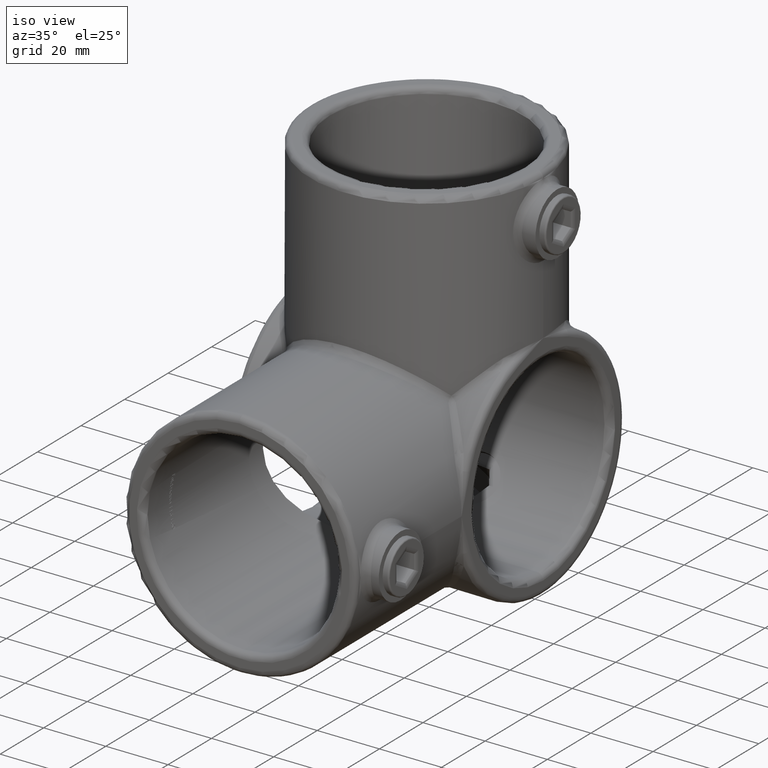
[diagram: clean part render]
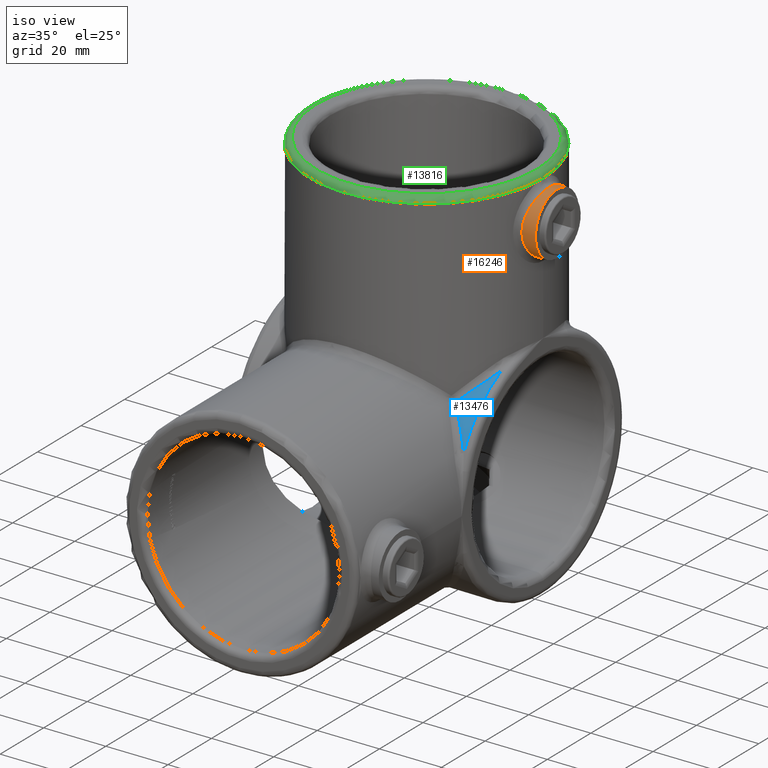
[diagram: same view with three faces highlighted in distinct colors, each labeled with its STEP entity id]
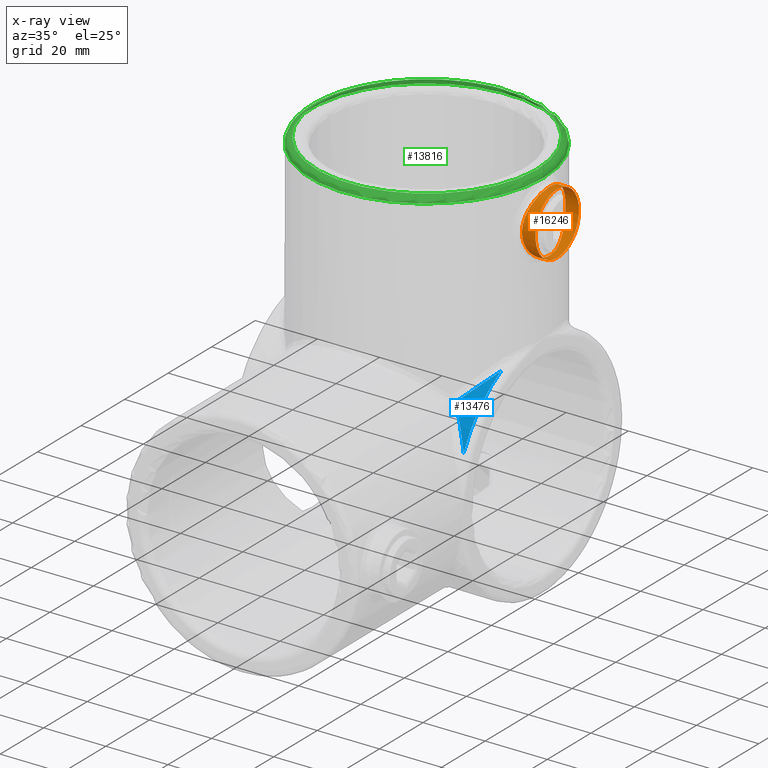
[diagram: x-ray of the same camera — body ghosted, the three highlighted faces saturated]
A machine part, iso view with three faces highlighted in distinct colors.
The next image is the same camera in x-ray (body ghosted, the three faces saturated) — at least one of them is partly hidden behind the body in this view.
Their STEP definitions:

[orange] entity #16246 — the highlighted cylindrical surface (bore or boss wall) has radius 10 mm, axis along (-1, -0, -0).
#801 = CARTESIAN_POINT ( 'NONE',  ( 39.14351397054227988, -4.454152490823579669, 80.97716789974165863 ) ) ;
#854 = CARTESIAN_POINT ( 'NONE',  ( 39.14004574505967327, -4.443320032738345304, 63.03535222760435630 ) ) ;
#1010 = CARTESIAN_POINT ( 'NONE',  ( 39.27182466853748366, 3.546055762269261447, 81.35589838738557944 ) ) ;
#1120 = CARTESIAN_POINT ( 'NONE',  ( 38.16448163088987400, 8.489058784799398794, 66.70463876329603181 ) ) ;
#1172 = CARTESIAN_POINT ( 'NONE',  ( 37.75509050574655845, 9.676339284484345882, 69.39237150887930738 ) ) ;
#1226 = CARTESIAN_POINT ( 'NONE',  ( 38.33589253559555488, 7.935253702846572388, 65.90593961362975506 ) ) ;
#1315 = DIRECTION ( 'NONE',  ( 0.000000000000000000, 0.000000000000000000, -1.000000000000000000 ) ) ;
#1497 = ORIENTED_EDGE ( 'NONE', *, *, #12329, .T. ) ;
#1747 = EDGE_CURVE ( 'NONE', #8805, #8805, #6264, .T. ) ;
#2009 = CARTESIAN_POINT ( 'NONE',  ( 38.00690729431418902, -8.966057153383866662, 76.44028666850655895 ) ) ;
#2062 = CARTESIAN_POINT ( 'NONE',  ( 37.76105798106237899, -9.659733394204916834, 74.60727377983674558 ) ) ;
#2172 = CARTESIAN_POINT ( 'NONE',  ( 39.37803569260889702, -2.604042728230267389, 81.66062694571560598 ) ) ;
#2225 = CARTESIAN_POINT ( 'NONE',  ( 37.95862255232369620, 9.106543099280294484, 67.85522492947607986 ) ) ;
#2287 = CYLINDRICAL_SURFACE ( 'NONE', #5505, 9.999999999999994671 ) ;
#2441 = CARTESIAN_POINT ( 'NONE',  ( 39.31078164665806440, 3.233581040835534104, 81.46850568885284360 ) ) ;
#3245 = CARTESIAN_POINT ( 'NONE',  ( 39.45251438776946173, -1.645765901163158684, 62.13084110006579408 ) ) ;
#3301 = CARTESIAN_POINT ( 'NONE',  ( 37.66447433050423399, -9.917685337157973180, 70.67719463935955559 ) ) ;
#3358 = CARTESIAN_POINT ( 'NONE',  ( 39.50000000000000711, 0.000000000000000000, 81.99999999999998579 ) ) ;
#3397 = CARTESIAN_POINT ( 'NONE',  ( 38.45656090903788282, -7.530449804685437343, 78.61145459978767747 ) ) ;
#3451 = CARTESIAN_POINT ( 'NONE',  ( 37.63311587998091312, -9.999951012648427451, 72.66009588792660168 ) ) ;
#3500 = CARTESIAN_POINT ( 'NONE',  ( 38.00311300466960773, 8.979580721659226938, 76.44862403024973219 ) ) ;
#3604 = CARTESIAN_POINT ( 'NONE',  ( 37.82565423331252674, 9.485726077855295202, 68.76671201514002973 ) ) ;
#3868 = DIRECTION ( 'NONE',  ( 0.000000000000000000, 0.000000000000000000, 1.000000000000000000 ) ) ;
#4520 = CARTESIAN_POINT ( 'NONE',  ( 37.87100185342826819, -9.356436035521873862, 75.54447971154756658 ) ) ;
#4568 = CARTESIAN_POINT ( 'NONE',  ( 37.95906019480450055, -9.105275893888606475, 67.85246652764629971 ) ) ;
#4618 = CARTESIAN_POINT ( 'NONE',  ( 39.31063185199693066, -3.234859378812163122, 81.46807458325324092 ) ) ;
#4678 = CARTESIAN_POINT ( 'NONE',  ( 37.63939039777377360, -9.983598069691412391, 71.33813441555615498 ) ) ;
#4725 = CARTESIAN_POINT ( 'NONE',  ( 38.63777888216979761, -6.844050286365287228, 79.29820027295693308 ) ) ;
#4771 = CARTESIAN_POINT ( 'NONE',  ( 38.11014338080087072, 8.656398617775462156, 66.98272355644687082 ) ) ;
#4825 = CARTESIAN_POINT ( 'NONE',  ( 37.65835073495334484, 9.934691068265456337, 73.31831046132859342 ) ) ;
#4988 = CARTESIAN_POINT ( 'NONE',  ( 37.76160493630191439, 9.658248318902657559, 74.61269617464488135 ) ) ;
#5060 = FACE_OUTER_BOUND ( 'NONE', #14037, .T. ) ;
#5505 = AXIS2_PLACEMENT_3D ( 'NONE', #14969, #7391, #3868 ) ;
#5789 = CARTESIAN_POINT ( 'NONE',  ( 37.73077269952548818, -9.741285367324199029, 74.28390439089366737 ) ) ;
#5846 = B_SPLINE_CURVE_WITH_KNOTS ( 'NONE', 3,
 ( #8309, #9577, #10989, #10826, #2172, #4618, #14729, #801, #5896, #11048, #9632, #16067, #4725, #3397, #13396, #14843, #8515, #2009, #10881, #4520, #12267, #2062, #5789, #13454, #3451, #12322, #4678, #3301, #12160, #14888, #7208, #4568, #5848, #5992, #13615, #13510, #12220, #14789, #7105, #7261, #16013, #10932, #7153, #854, #13558, #16175, #5945, #3245, #12103, #13712, #7524, #16435, #12436, #13826, #8787, #6156, #16380, #8678, #8728, #6270, #16230, #14940, #1226, #11204, #1120, #4771, #15103, #2225, #3604, #1172, #8572, #11311, #12599, #4825, #6108, #4988, #11095, #16328, #3500, #13881, #15162, #13665, #12491, #6051, #7312, #7468, #10018, #9962, #1010, #2441, #12374, #9858, #15001, #8633, #11255 ),
 .UNSPECIFIED., .T., .F.,
 ( 4, 2, 2, 2, 2, 2, 2, 2, 2, 2, 2, 2, 2, 2, 2, 2, 2, 2, 2, 2, 2, 2, 2, 2, 2, 1, 2, 2, 2, 2, 2, 2, 2, 2, 2, 2, 2, 2, 2, 2, 2, 2, 2, 2, 2, 2, 2, 4 ),
 ( 0.000000000000000000, 0.001970252277996794449, 0.002955378416995192541, 0.003940504555993590632, 0.005910756833990385081, 0.006895882972988770163, 0.007881009111987155244, 0.009851261389983923672, 0.01083638752898231916, 0.01182151366798071812, 0.01280663980697911535, 0.01379176594597751257, 0.01576201822397434865, 0.01674714436297278577, 0.01773227050197122637, 0.01970252277996810408, 0.02068764891896652733, 0.02167277505796494710, 0.02265790119696337035, 0.02364302733596179706, 0.02561327961395862274, 0.02659840575295703557, 0.02758353189195544841, 0.02955378416995227756, 0.03053891030895069039, 0.03152403644794909282, 0.03250916258694750566, 0.03349428872594591849, 0.03546454100394273723, 0.03743479328193954903, 0.03940504555993636082, 0.04039017169893479448, 0.04137529783793321425, 0.04236042397693164097, 0.04334555011593006074, 0.04531580239392696274, 0.04728605467192385087, 0.04925630694992073899, 0.05024143308891919346, 0.05122655922791763405, 0.05319681150591453606, 0.05516706378391143112, 0.05615218992290990641, 0.05713731606190836781, 0.05910756833990529063, 0.06009269447890375204, 0.06107782061790222039, 0.06304807289589912933 ),
 .UNSPECIFIED. ) ;
#5848 = CARTESIAN_POINT ( 'NONE',  ( 38.00784661120601982, -8.963294361571046309, 67.55414261109699225 ) ) ;
#5896 = CARTESIAN_POINT ( 'NONE',  ( 39.04244331886162200, -5.025606776995299896, 80.66980594363782586 ) ) ;
#5945 = CARTESIAN_POINT ( 'NONE',  ( 39.38272796909166118, -2.616125911931114878, 62.32574259246477766 ) ) ;
#5992 = CARTESIAN_POINT ( 'NONE',  ( 38.11070816488014401, -8.654673479054412866, 66.97974893998446078 ) ) ;
#6051 = CARTESIAN_POINT ( 'NONE',  ( 38.69793721620513338, 6.604633845759603439, 79.51565991573811232 ) ) ;
#6108 = CARTESIAN_POINT ( 'NONE',  ( 37.73125640482206222, 9.739985822936311877, 74.28947230657638556 ) ) ;
#6156 = CARTESIAN_POINT ( 'NONE',  ( 39.31437134943991651, 3.244651576998102360, 62.51853687240283364 ) ) ;
#6264 = CIRCLE ( 'NONE', #14539, 10.00000000000000178 ) ;
#6270 = CARTESIAN_POINT ( 'NONE',  ( 38.69916356741344998, 6.611457433530207872, 64.46925378247202332 ) ) ;
#7105 = CARTESIAN_POINT ( 'NONE',  ( 38.51684870073103895, -7.302146390636753637, 65.16003384042655000 ) ) ;
#7153 = CARTESIAN_POINT ( 'NONE',  ( 39.03909704935048808, -5.022320754223615680, 63.34642866568106001 ) ) ;
#7208 = CARTESIAN_POINT ( 'NONE',  ( 37.82613083946441179, -9.484405037748555145, 68.76296538288156057 ) ) ;
#7261 = CARTESIAN_POINT ( 'NONE',  ( 38.69955300664853581, -6.609970469177300245, 64.46778875135593978 ) ) ;
#7312 = CARTESIAN_POINT ( 'NONE',  ( 38.81681799096119079, 6.100973106955343006, 79.92997221645779860 ) ) ;
#7391 = DIRECTION ( 'NONE',  ( -1.000000000000000000, -0.000000000000000000, -0.000000000000000000 ) ) ;
#7468 = CARTESIAN_POINT ( 'NONE',  ( 38.87539447292136430, 5.837033047715062040, 80.12619659229123670 ) ) ;
#7524 = CARTESIAN_POINT ( 'NONE',  ( 39.50592882365219083, 0.002372174689629745134, 61.98377349221196653 ) ) ;
#8309 = CARTESIAN_POINT ( 'NONE',  ( 39.50000000000001421, -5.421010862427522170E-16, 81.99999999999998579 ) ) ;
#8515 = CARTESIAN_POINT ( 'NONE',  ( 38.10970332571042718, -8.657742800237119951, 77.01495924023369355 ) ) ;
#8572 = CARTESIAN_POINT ( 'NONE',  ( 37.65851132749767771, 9.934256252553650413, 70.68021933460217099 ) ) ;
#8633 = CARTESIAN_POINT ( 'NONE',  ( 39.50000000000002842, 0.6670017229606644005, 82.00000000000002842 ) ) ;
#8678 = CARTESIAN_POINT ( 'NONE',  ( 39.04083446234930221, 5.034184375147169987, 63.33522084697906962 ) ) ;
#8728 = CARTESIAN_POINT ( 'NONE',  ( 38.81860510910694018, 6.112179930546743911, 64.05879942387656456 ) ) ;
#8787 = CARTESIAN_POINT ( 'NONE',  ( 39.38230684179221441, 2.620536703130465384, 62.32692939272511268 ) ) ;
#8805 = VERTEX_POINT ( 'NONE', #9376 ) ;
#9376 = CARTESIAN_POINT ( 'NONE',  ( 42.00000000000000000, 0.000000000000000000, 61.99999999999999289 ) ) ;
#9577 = CARTESIAN_POINT ( 'NONE',  ( 39.50000000000000000, -0.6670017229606250986, 81.99999999999995737 ) ) ;
#9632 = CARTESIAN_POINT ( 'NONE',  ( 38.81741640398068682, -6.098361984669088187, 79.93201946254291101 ) ) ;
#9858 = CARTESIAN_POINT ( 'NONE',  ( 39.40662427479664842, 2.284776725751611171, 81.74100244011712846 ) ) ;
#9962 = CARTESIAN_POINT ( 'NONE',  ( 39.14366599581078532, 4.453264225383455788, 80.97762898296372214 ) ) ;
#10018 = CARTESIAN_POINT ( 'NONE',  ( 39.04248251839528194, 5.025520989468729383, 80.66996206515021584 ) ) ;
#10401 = VERTEX_POINT ( 'NONE', #3358 ) ;
#10826 = CARTESIAN_POINT ( 'NONE',  ( 39.40655406838219932, -2.285636112954299470, 81.74080551377399217 ) ) ;
#10881 = CARTESIAN_POINT ( 'NONE',  ( 37.95888362253592874, -9.105771396564533049, 76.14622225476303186 ) ) ;
#10932 = CARTESIAN_POINT ( 'NONE',  ( 38.98569443588834105, -5.301549877900089136, 63.51478664173696131 ) ) ;
#10989 = CARTESIAN_POINT ( 'NONE',  ( 39.47571625952431873, -1.321521333457680969, 81.93394581006252508 ) ) ;
#11048 = CARTESIAN_POINT ( 'NONE',  ( 38.87573728604922252, -5.835420221611874680, 80.12732646579014784 ) ) ;
#11095 = CARTESIAN_POINT ( 'NONE',  ( 37.83166783870041883, 9.465927610403808146, 75.24101162682036659 ) ) ;
#11204 = CARTESIAN_POINT ( 'NONE',  ( 38.27735482116889187, 8.128486323975154804, 66.16624651190028317 ) ) ;
#11255 = CARTESIAN_POINT ( 'NONE',  ( 39.50000000000001421, -5.421010862427522170E-16, 81.99999999999998579 ) ) ;
#11311 = CARTESIAN_POINT ( 'NONE',  ( 37.63291144246691999, 10.00048529174201484, 71.34930337811054812 ) ) ;
#11404 = CARTESIAN_POINT ( 'NONE',  ( 42.00000000000000000, 0.000000000000000000, 72.00000000000000000 ) ) ;
#11471 = EDGE_LOOP ( 'NONE', ( #1497 ) ) ;
#11826 = FACE_OUTER_BOUND ( 'NONE', #11471, .T. ) ;
#12103 = CARTESIAN_POINT ( 'NONE',  ( 39.47044419586520547, -1.315084469611473628, 62.08132521641304891 ) ) ;
#12160 = CARTESIAN_POINT ( 'NONE',  ( 37.68309376494635643, -9.868617073165113496, 70.35143216007995193 ) ) ;
#12220 = CARTESIAN_POINT ( 'NONE',  ( 38.33622559148567888, -7.934122890813480211, 65.90451027580660082 ) ) ;
#12267 = CARTESIAN_POINT ( 'NONE',  ( 37.83114167358082369, -9.467387972757306258, 75.23680255552176277 ) ) ;
#12322 = CARTESIAN_POINT ( 'NONE',  ( 37.63308777888394729, -10.00002445232308901, 71.67106586966875170 ) ) ;
#12329 = EDGE_CURVE ( 'NONE', #10401, #10401, #5846, .T. ) ;
#12374 = CARTESIAN_POINT ( 'NONE',  ( 39.37812887482204616, 2.603046656451171170, 81.66088993995005296 ) ) ;
#12436 = CARTESIAN_POINT ( 'NONE',  ( 39.47023434969346312, 1.319416952624589801, 62.08190473003332954 ) ) ;
#12491 = CARTESIAN_POINT ( 'NONE',  ( 38.63763800394738723, 6.844592221661691234, 79.29767397332744849 ) ) ;
#12599 = CARTESIAN_POINT ( 'NONE',  ( 37.63328493255760776, 9.999509208886511402, 72.66552817031325162 ) ) ;
#13396 = CARTESIAN_POINT ( 'NONE',  ( 38.33576765384808738, -7.941760012469491592, 78.11199285655395386 ) ) ;
#13454 = CARTESIAN_POINT ( 'NONE',  ( 37.65810713805957732, -9.935325956861561281, 73.31329266672113931 ) ) ;
#13510 = CARTESIAN_POINT ( 'NONE',  ( 38.27778876147223741, -8.127063558652961817, 66.16428700153248599 ) ) ;
#13558 = CARTESIAN_POINT ( 'NONE',  ( 39.18713581827157810, -4.145887410645200610, 62.89404462593374490 ) ) ;
#13615 = CARTESIAN_POINT ( 'NONE',  ( 38.16503145458707280, -8.487338606821930753, 66.70190679017274249 ) ) ;
#13665 = CARTESIAN_POINT ( 'NONE',  ( 38.45664775311692551, 7.530104190412493459, 78.61176854470735975 ) ) ;
#13674 = ORIENTED_EDGE ( 'NONE', *, *, #1747, .F. ) ;
#13712 = CARTESIAN_POINT ( 'NONE',  ( 39.49412711404099952, -0.6563215040924296195, 62.01607306758423022 ) ) ;
#13826 = CARTESIAN_POINT ( 'NONE',  ( 39.45225328343679649, 1.650111621919561733, 62.13156504142371261 ) ) ;
#13854 = DIRECTION ( 'NONE',  ( 1.000000000000000000, 0.000000000000000000, 0.000000000000000000 ) ) ;
#13881 = CARTESIAN_POINT ( 'NONE',  ( 38.10736662559640564, 8.671612073957520650, 77.02323062233466544 ) ) ;
#14037 = EDGE_LOOP ( 'NONE', ( #13674 ) ) ;
#14539 = AXIS2_PLACEMENT_3D ( 'NONE', #11404, #13854, #1315 ) ;
#14729 = CARTESIAN_POINT ( 'NONE',  ( 39.27165088907101875, -3.547379581150745587, 81.35539163184260758 ) ) ;
#14789 = CARTESIAN_POINT ( 'NONE',  ( 38.45560237860733110, -7.522248435970118940, 65.40294918226160803 ) ) ;
#14843 = CARTESIAN_POINT ( 'NONE',  ( 38.16476210201614094, -8.488225621633469942, 77.29688851966898255 ) ) ;
#14888 = CARTESIAN_POINT ( 'NONE',  ( 37.75559647140200781, -9.674970240959989809, 69.38763205599265405 ) ) ;
#14940 = CARTESIAN_POINT ( 'NONE',  ( 38.45556076097423670, 7.522410267404065820, 65.40309412753815366 ) ) ;
#14969 = CARTESIAN_POINT ( 'NONE',  ( 42.00000000000000000, 0.000000000000000000, 72.00000000000000000 ) ) ;
#15001 = CARTESIAN_POINT ( 'NONE',  ( 39.47573240527798077, 1.321057289452533645, 81.93398915529910198 ) ) ;
#15103 = CARTESIAN_POINT ( 'NONE',  ( 38.00732431224114549, 8.964830529641266921, 67.55724032659085765 ) ) ;
#15162 = CARTESIAN_POINT ( 'NONE',  ( 38.33580650432249826, 7.941662442500614816, 78.11225813392574935 ) ) ;
#16013 = CARTESIAN_POINT ( 'NONE',  ( 38.81912009418868337, -6.109898667557325247, 64.05706315997575473 ) ) ;
#16067 = CARTESIAN_POINT ( 'NONE',  ( 38.69820230006210693, -6.603586054068322220, 79.51662177289308886 ) ) ;
#16175 = CARTESIAN_POINT ( 'NONE',  ( 39.31485230724224067, -3.240790945085287866, 62.51714722063113072 ) ) ;
#16230 = CARTESIAN_POINT ( 'NONE',  ( 38.51697624117348084, 7.301657413806185382, 65.15955586175449810 ) ) ;
#16246 = ADVANCED_FACE ( 'NONE', ( #11826, #5060 ), #2287, .T. ) ;
#16328 = CARTESIAN_POINT ( 'NONE',  ( 37.87148993531769037, 9.355061492753211638, 75.54804254366169403 ) ) ;
#16380 = CARTESIAN_POINT ( 'NONE',  ( 39.14423912345250756, 4.449431767749810085, 63.02066462146334658 ) ) ;
#16435 = CARTESIAN_POINT ( 'NONE',  ( 39.49401484010204655, 0.6609291681969059473, 62.01638104124388207 ) ) ;

[blue] entity #13476 — the highlighted cylindrical surface (partial cylindrical patch) has radius 37.5 mm, axis along (-1, -0, -0).
#66 = VERTEX_POINT ( 'NONE', #3958 ) ;
#361 = DIRECTION ( 'NONE',  ( 0.000000000000000000, 0.000000000000000000, -1.000000000000000000 ) ) ;
#499 = AXIS2_PLACEMENT_3D ( 'NONE', #9141, #2857, #361 ) ;
#526 = DIRECTION ( 'NONE',  ( 0.000000000000000000, 0.000000000000000000, 1.000000000000000000 ) ) ;
#982 = EDGE_LOOP ( 'NONE', ( #9462, #8221, #5232 ) ) ;
#1126 = VERTEX_POINT ( 'NONE', #2097 ) ;
#2097 = CARTESIAN_POINT ( 'NONE',  ( 35.50000000000000000, -16.44352032502100869, 33.70253164556961423 ) ) ;
#2857 = DIRECTION ( 'NONE',  ( -1.000000000000000000, -0.000000000000000000, -0.000000000000000000 ) ) ;
#3013 = CYLINDRICAL_SURFACE ( 'NONE', #10322, 37.50000000000000711 ) ;
#3590 = CARTESIAN_POINT ( 'NONE',  ( 35.50000000000000000, -33.70253164556961423, 16.44352032502101935 ) ) ;
#3958 = CARTESIAN_POINT ( 'NONE',  ( 27.93071785686863251, -26.51650429449554025, 26.51650429449553314 ) ) ;
#4676 = EDGE_CURVE ( 'NONE', #1126, #66, #9830, .T. ) ;
#5232 = ORIENTED_EDGE ( 'NONE', *, *, #15239, .T. ) ;
#7842 = CIRCLE ( 'NONE', #499, 37.50000000000000711 ) ;
#8190 = DIRECTION ( 'NONE',  ( -1.000000000000000000, -0.000000000000000000, -0.000000000000000000 ) ) ;
#8221 = ORIENTED_EDGE ( 'NONE', *, *, #12681, .T. ) ;
#8610 = CARTESIAN_POINT ( 'NONE',  ( 27.93071785686863251, -26.51650429449554025, 26.51650429449553314 ) ) ;
#8767 = CARTESIAN_POINT ( 'NONE',  ( 33.57740830020568268, -31.87728636095476276, 20.18453111527463051 ) ) ;
#8795 = VERTEX_POINT ( 'NONE', #10935 ) ;
#9141 = CARTESIAN_POINT ( 'NONE',  ( 35.50000000000000000, 0.000000000000000000, 0.000000000000000000 ) ) ;
#9462 = ORIENTED_EDGE ( 'NONE', *, *, #4676, .T. ) ;
#9830 =( BOUNDED_CURVE ( )  B_SPLINE_CURVE ( 3, ( #13746, #9940, #12632, #8610 ),
 .UNSPECIFIED., .F., .T. ) 
 B_SPLINE_CURVE_WITH_KNOTS ( ( 4, 4 ),
 ( 3.595514811673134581, 3.926990816987240951 ),
 .UNSPECIFIED. ) 
 CURVE ( )  GEOMETRIC_REPRESENTATION_ITEM ( )  RATIONAL_B_SPLINE_CURVE ( ( 1.000000000000000000, 0.9908645787168743890, 0.9908645787168743890, 1.000000000000000000 ) ) 
 REPRESENTATION_ITEM ( '' )  );
#9841 = CARTESIAN_POINT ( 'NONE',  ( 31.03105221693772720, -29.45985969962442752, 23.57314888936662456 ) ) ;
#9940 = CARTESIAN_POINT ( 'NONE',  ( 33.57740830020569689, -20.18453111527461985, 31.87728636095477697 ) ) ;
#10322 = AXIS2_PLACEMENT_3D ( 'NONE', #10707, #8190, #526 ) ;
#10707 = CARTESIAN_POINT ( 'NONE',  ( 37.50000000000000000, 0.000000000000000000, 0.000000000000000000 ) ) ;
#10914 = CARTESIAN_POINT ( 'NONE',  ( 27.93071785686863251, -26.51650429449554025, 26.51650429449553314 ) ) ;
#10935 = CARTESIAN_POINT ( 'NONE',  ( 35.50000000000000000, -33.70253164556961423, 16.44352032502101935 ) ) ;
#12002 =( BOUNDED_CURVE ( )  B_SPLINE_CURVE ( 3, ( #10914, #9841, #8767, #3590 ),
 .UNSPECIFIED., .F., .T. ) 
 B_SPLINE_CURVE_WITH_KNOTS ( ( 4, 4 ),
 ( 2.356194490192345281, 2.687670495506451207 ),
 .UNSPECIFIED. ) 
 CURVE ( )  GEOMETRIC_REPRESENTATION_ITEM ( )  RATIONAL_B_SPLINE_CURVE ( ( 1.000000000000000000, 0.9908645787168743890, 0.9908645787168743890, 1.000000000000000000 ) ) 
 REPRESENTATION_ITEM ( '' )  );
#12632 = CARTESIAN_POINT ( 'NONE',  ( 31.03105221693773785, -23.57314888936661745, 29.45985969962443463 ) ) ;
#12681 = EDGE_CURVE ( 'NONE', #66, #8795, #12002, .T. ) ;
#12723 = FACE_OUTER_BOUND ( 'NONE', #982, .T. ) ;
#13476 = ADVANCED_FACE ( 'NONE', ( #12723 ), #3013, .T. ) ;
#13746 = CARTESIAN_POINT ( 'NONE',  ( 35.50000000000000000, -16.44352032502100869, 33.70253164556961423 ) ) ;
#15239 = EDGE_CURVE ( 'NONE', #8795, #1126, #7842, .T. ) ;

[green] entity #13816 — the highlighted toroidal blend (fillet) surface has major radius 35.5 mm and minor (blend) radius 2 mm.
#543 = DIRECTION ( 'NONE',  ( 1.000000000000000000, 0.000000000000000000, 0.000000000000000000 ) ) ;
#824 = FACE_OUTER_BOUND ( 'NONE', #16293, .T. ) ;
#878 = CARTESIAN_POINT ( 'NONE',  ( 0.000000000000000000, 0.000000000000000000, 83.99999999999998579 ) ) ;
#1842 = EDGE_CURVE ( 'NONE', #15410, #15410, #6470, .T. ) ;
#2296 = DIRECTION ( 'NONE',  ( -0.000000000000000000, -0.000000000000000000, -1.000000000000000000 ) ) ;
#5446 = DIRECTION ( 'NONE',  ( 0.000000000000000000, 0.000000000000000000, 1.000000000000000000 ) ) ;
#6022 = ORIENTED_EDGE ( 'NONE', *, *, #1842, .F. ) ;
#6470 = CIRCLE ( 'NONE', #8222, 35.50000000000000711 ) ;
#7434 = ORIENTED_EDGE ( 'NONE', *, *, #11419, .F. ) ;
#8222 = AXIS2_PLACEMENT_3D ( 'NONE', #10841, #13305, #543 ) ;
#8546 = CARTESIAN_POINT ( 'NONE',  ( 37.50000000000000711, 0.000000000000000000, 83.99999999999998579 ) ) ;
#9588 = AXIS2_PLACEMENT_3D ( 'NONE', #12936, #5446, #14278 ) ;
#10841 = CARTESIAN_POINT ( 'NONE',  ( 0.000000000000000000, 0.000000000000000000, 86.00000000000000000 ) ) ;
#11117 = FACE_OUTER_BOUND ( 'NONE', #13227, .T. ) ;
#11419 = EDGE_CURVE ( 'NONE', #16197, #16197, #13565, .T. ) ;
#12114 = CARTESIAN_POINT ( 'NONE',  ( 35.50000000000000711, 0.000000000000000000, 86.00000000000000000 ) ) ;
#12511 = TOROIDAL_SURFACE ( 'NONE', #9588, 35.50000000000000711, 2.000000000000000000 ) ;
#12936 = CARTESIAN_POINT ( 'NONE',  ( 0.000000000000000000, 0.000000000000000000, 83.99999999999998579 ) ) ;
#13227 = EDGE_LOOP ( 'NONE', ( #7434 ) ) ;
#13305 = DIRECTION ( 'NONE',  ( 0.000000000000000000, 0.000000000000000000, 1.000000000000000000 ) ) ;
#13565 = CIRCLE ( 'NONE', #14718, 37.50000000000000711 ) ;
#13816 = ADVANCED_FACE ( 'NONE', ( #11117, #824 ), #12511, .T. ) ;
#14278 = DIRECTION ( 'NONE',  ( 1.000000000000000000, 0.000000000000000000, 0.000000000000000000 ) ) ;
#14718 = AXIS2_PLACEMENT_3D ( 'NONE', #878, #2296, #15018 ) ;
#15018 = DIRECTION ( 'NONE',  ( 1.000000000000000000, 0.000000000000000000, 0.000000000000000000 ) ) ;
#15410 = VERTEX_POINT ( 'NONE', #12114 ) ;
#16197 = VERTEX_POINT ( 'NONE', #8546 ) ;
#16293 = EDGE_LOOP ( 'NONE', ( #6022 ) ) ;